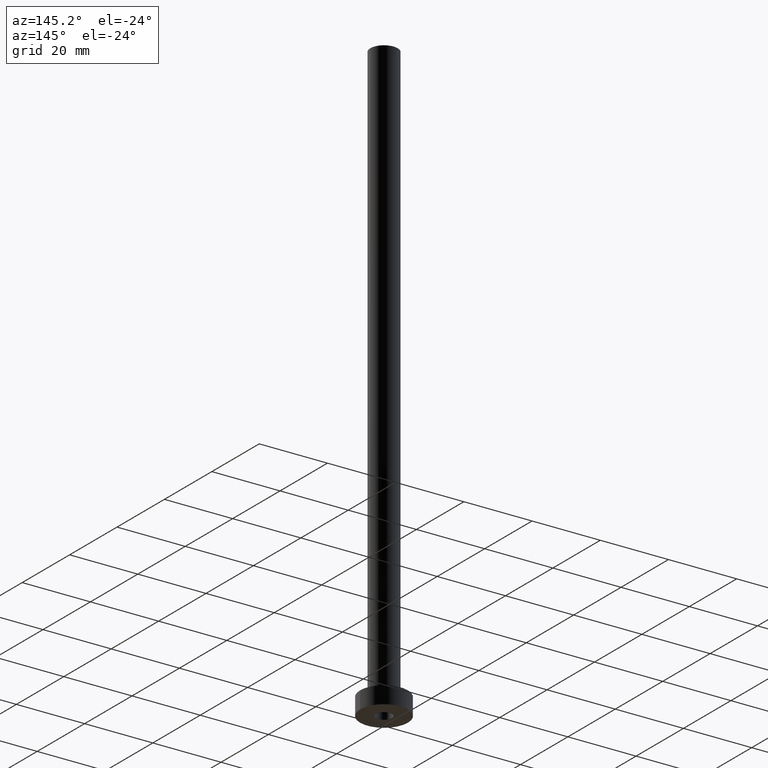
[diagram: clean part render]
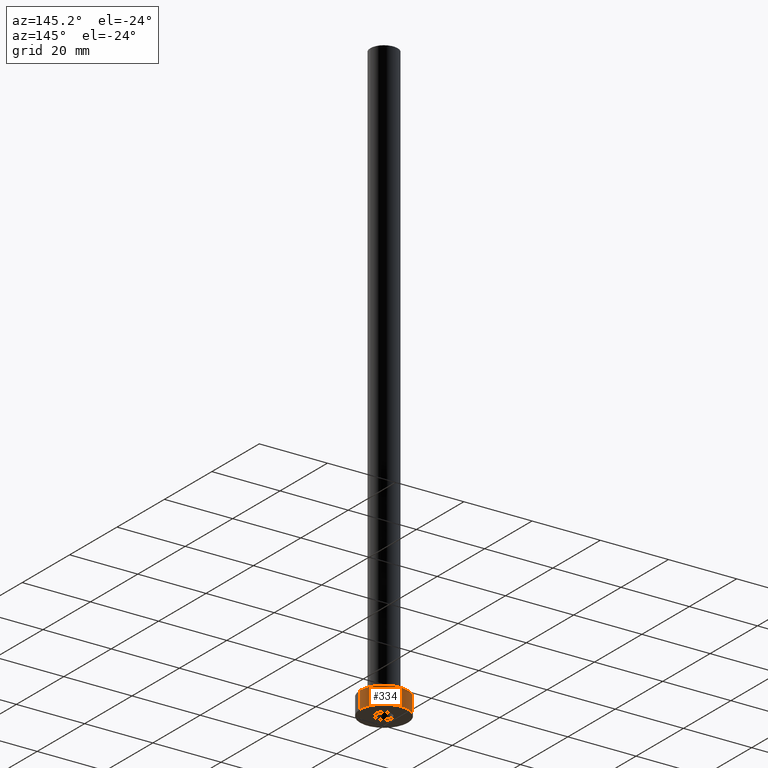
[diagram: same view with one face highlighted and labeled with its STEP entity id]
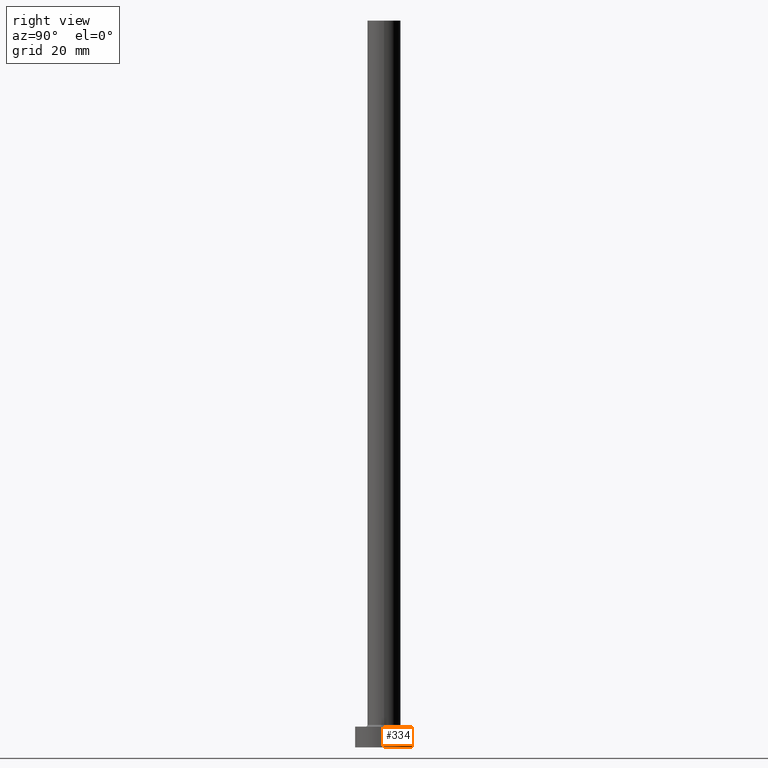
[diagram: same view with one face highlighted and labeled with its STEP entity id]
A machine part, auxiliary view. The second image highlights one B-rep face of the part: STEP entity #334.
A second angle (right view) of the same face is appended — the face is thin or edge-on in the first view.
In plain terms, the highlighted cylindrical surface (edge-blend (fillet) strip) has radius 7 mm, axis along (-0, -0, -1).
Its self-contained STEP definition (entity closure, byte-faithful):
#5 = CIRCLE ( 'NONE', #305, 7.000000000000000000 ) ;
#12 = VECTOR ( 'NONE', #357, 1000.000000000000000 ) ;
#20 = CARTESIAN_POINT ( 'NONE',  ( -7.000000000000000000, 0.000000000000000000, 0.000000000000000000 ) ) ;
#24 = VECTOR ( 'NONE', #116, 1000.000000000000000 ) ;
#76 = DIRECTION ( 'NONE',  ( 0.000000000000000000, 0.000000000000000000, 1.000000000000000000 ) ) ;
#82 = CARTESIAN_POINT ( 'NONE',  ( -7.000000000000000000, 0.000000000000000000, 5.000000000000000000 ) ) ;
#95 = CARTESIAN_POINT ( 'NONE',  ( 0.000000000000000000, 0.000000000000000000, 5.000000000000000000 ) ) ;
#101 = DIRECTION ( 'NONE',  ( 1.000000000000000000, 0.000000000000000000, 0.000000000000000000 ) ) ;
#108 = EDGE_CURVE ( 'NONE', #115, #385, #5, .T. ) ;
#115 = VERTEX_POINT ( 'NONE', #302 ) ;
#116 = DIRECTION ( 'NONE',  ( -0.000000000000000000, -0.000000000000000000, -1.000000000000000000 ) ) ;
#134 = FACE_OUTER_BOUND ( 'NONE', #224, .T. ) ;
#166 = DIRECTION ( 'NONE',  ( 0.000000000000000000, 0.000000000000000000, 1.000000000000000000 ) ) ;
#197 = ORIENTED_EDGE ( 'NONE', *, *, #411, .T. ) ;
#224 = EDGE_LOOP ( 'NONE', ( #312, #197, #444, #228 ) ) ;
#228 = ORIENTED_EDGE ( 'NONE', *, *, #441, .F. ) ;
#248 = AXIS2_PLACEMENT_3D ( 'NONE', #95, #313, #458 ) ;
#261 = DIRECTION ( 'NONE',  ( 1.000000000000000000, 0.000000000000000000, 0.000000000000000000 ) ) ;
#268 = EDGE_CURVE ( 'NONE', #366, #414, #404, .T. ) ;
#283 = CARTESIAN_POINT ( 'NONE',  ( 0.000000000000000000, 0.000000000000000000, 0.000000000000000000 ) ) ;
#300 = LINE ( 'NONE', #338, #12 ) ;
#302 = CARTESIAN_POINT ( 'NONE',  ( 7.000000000000000000, 8.572527594031473190E-16, 5.000000000000000000 ) ) ;
#305 = AXIS2_PLACEMENT_3D ( 'NONE', #364, #76, #261 ) ;
#312 = ORIENTED_EDGE ( 'NONE', *, *, #108, .F. ) ;
#313 = DIRECTION ( 'NONE',  ( -0.000000000000000000, -0.000000000000000000, -1.000000000000000000 ) ) ;
#314 = AXIS2_PLACEMENT_3D ( 'NONE', #283, #166, #101 ) ;
#334 = ADVANCED_FACE ( 'NONE', ( #134 ), #425, .T. ) ;
#338 = CARTESIAN_POINT ( 'NONE',  ( -7.000000000000000000, 0.000000000000000000, 5.000000000000000000 ) ) ;
#357 = DIRECTION ( 'NONE',  ( -0.000000000000000000, -0.000000000000000000, -1.000000000000000000 ) ) ;
#364 = CARTESIAN_POINT ( 'NONE',  ( 0.000000000000000000, 0.000000000000000000, 5.000000000000000000 ) ) ;
#366 = VERTEX_POINT ( 'NONE', #369 ) ;
#369 = CARTESIAN_POINT ( 'NONE',  ( 7.000000000000000000, 8.572527594031473190E-16, 0.000000000000000000 ) ) ;
#378 = LINE ( 'NONE', #445, #24 ) ;
#385 = VERTEX_POINT ( 'NONE', #82 ) ;
#404 = CIRCLE ( 'NONE', #314, 7.000000000000000000 ) ;
#411 = EDGE_CURVE ( 'NONE', #115, #366, #378, .T. ) ;
#414 = VERTEX_POINT ( 'NONE', #20 ) ;
#425 = CYLINDRICAL_SURFACE ( 'NONE', #248, 7.000000000000000000 ) ;
#441 = EDGE_CURVE ( 'NONE', #385, #414, #300, .T. ) ;
#444 = ORIENTED_EDGE ( 'NONE', *, *, #268, .T. ) ;
#445 = CARTESIAN_POINT ( 'NONE',  ( 7.000000000000000000, 8.572527594031473190E-16, 5.000000000000000000 ) ) ;
#458 = DIRECTION ( 'NONE',  ( -1.000000000000000000, 0.000000000000000000, 0.000000000000000000 ) ) ;